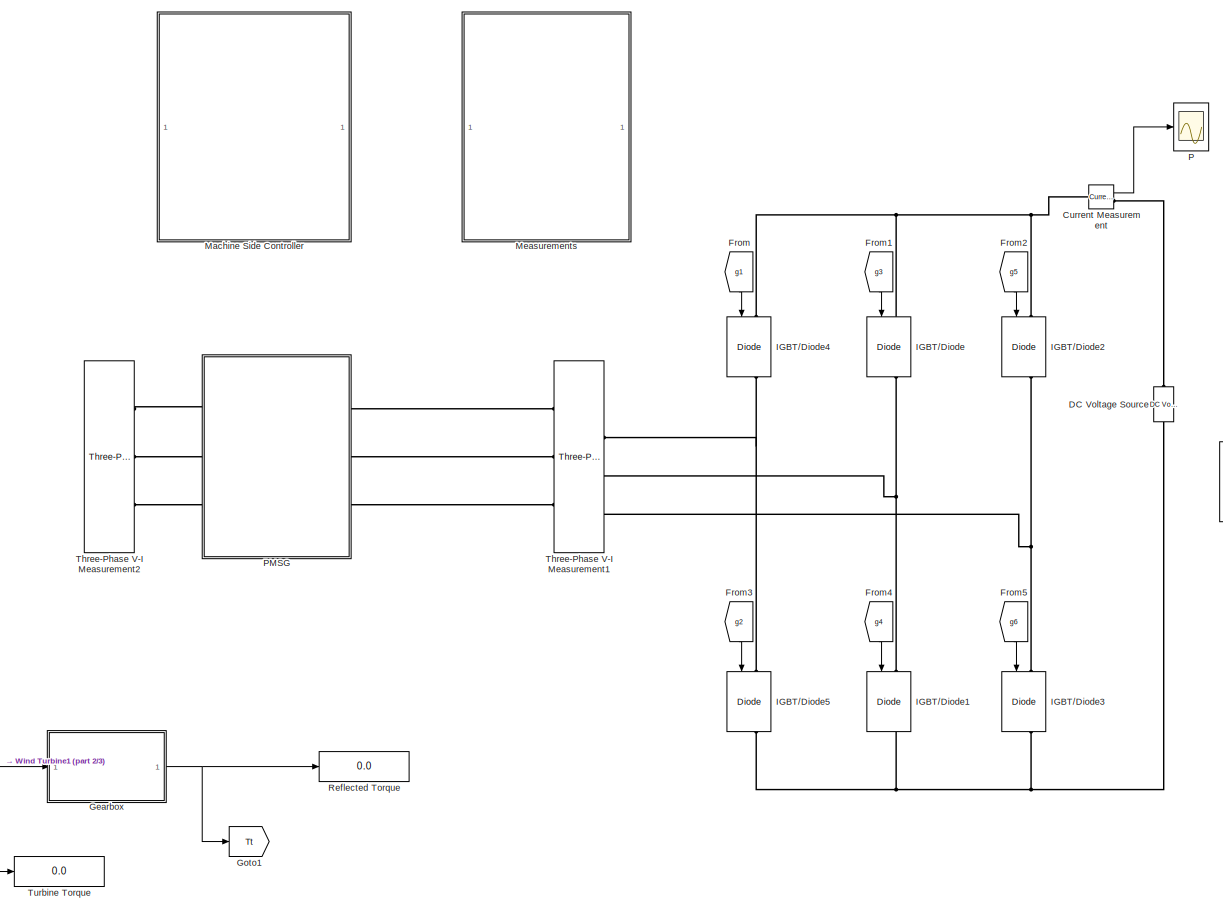
[diagram: root canvas - part 1/3, center side, full height]
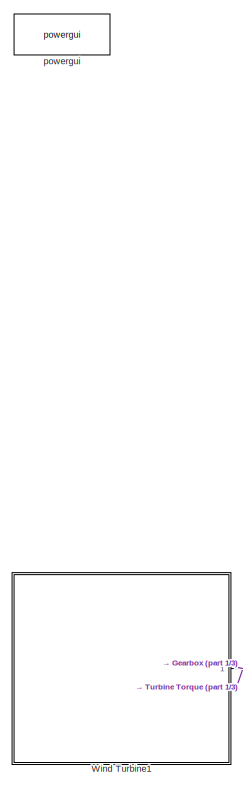
[diagram: root canvas - part 2/3, left side, full height]
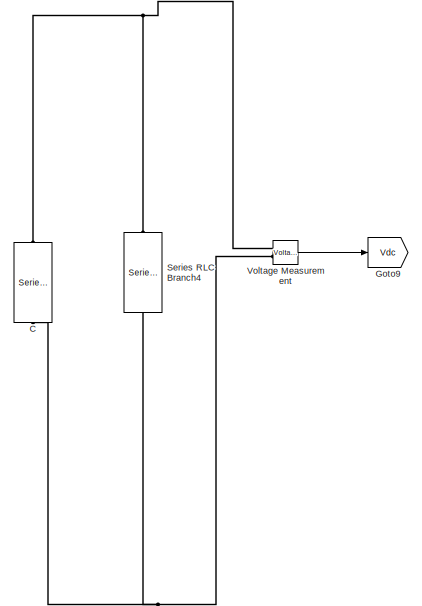
[diagram: root canvas - part 3/3, middle right region]
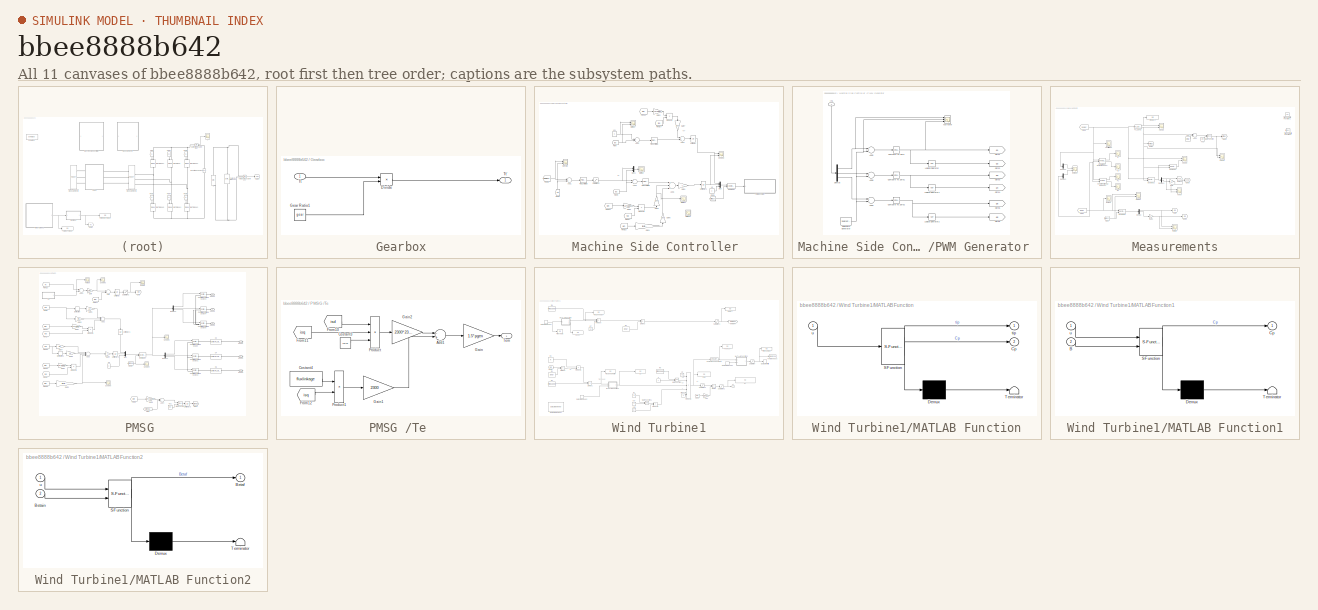
[diagram: thumbnail index - all 11 canvases of the model, root first then tree order]
MODEL slx_bbee8888b642
KIND model
CONFIG AbsTol = auto
CONFIG FixedStep = Ts
CONFIG MaxStep = auto
CONFIG MinStep = auto
CONFIG RelTol = 1e-3
CONFIG SampleTimeConstraint = Unconstrained
CONFIG Solver = FixedStepAuto
CONFIG SolverMode = SingleTasking
CONFIG SolverName = FixedStepAuto
CONFIG StartTime = 0.0
CONFIG StopTime = 10.0
BLOCK [Reference] C  REF=powerlib/Elements/Series RLC Branch
  Ports = [0, 0, 0, 0, 0, 1, 1]
  SourceBlock = powerlib/Elements/Series RLC Branch
  SourceType = Series RLC Branch
BLOCK [Reference] Current Measurement  REF=powerlib/Measurements/Current Measurement
  Ports = [0, 1, 0, 0, 0, 1, 1]
  SourceBlock = powerlib/Measurements/Current Measurement
  SourceType = Current Measurement
  UserDataPersistent = on
BLOCK [Reference] DC Voltage Source  REF=powerlib/Electrical
Sources/DC Voltage Source
  Ports = [0, 0, 0, 0, 0, 1, 1]
  SourceBlock = powerlib/Electrical\nSources/DC Voltage Source
  SourceType = DC Voltage Source
BLOCK [From] From
  GotoTag = g1
  TagVisibility = global
BLOCK [From] From1
  GotoTag = g3
  TagVisibility = global
BLOCK [From] From2
  GotoTag = g5
  TagVisibility = global
BLOCK [From] From3
  GotoTag = g2
  TagVisibility = global
BLOCK [From] From4
  GotoTag = g4
  TagVisibility = global
BLOCK [From] From5
  GotoTag = g6
  TagVisibility = global
BLOCK [SubSystem] Gearbox
  Ports = [1, 1]
  RequestExecContextInheritance = off
  Variant = off
BLOCK [Product] Gearbox/Divide
  InputSameDT = off
  Inputs = */
  OutDataTypeStr = Inherit: Inherit via internal rule
  Ports = [2, 1]
  RndMeth = Floor
  SaturateOnIntegerOverflow = off
BLOCK [Constant] Gearbox/Gear Ratio1
  Value = gear
BLOCK [Inport] Gearbox/Tt
  IconDisplay = Port number
BLOCK [Outport] Gearbox/Tt'
  IconDisplay = Port number
BLOCK [Goto] Goto1
  GotoTag = Tt
  TagVisibility = global
BLOCK [Goto] Goto9
  GotoTag = Vdc
  TagVisibility = global
BLOCK [Reference] IGBT//Diode  REF=powerlib/Power
Electronics/IGBT//Diode
  Ports = [1, 1, 0, 0, 0, 1, 1]
  SourceBlock = powerlib/Power\nElectronics/IGBT//Diode
  SourceType = IGBT/Diode
BLOCK [Reference] IGBT//Diode1  REF=powerlib/Power
Electronics/IGBT//Diode
  Ports = [1, 1, 0, 0, 0, 1, 1]
  SourceBlock = powerlib/Power\nElectronics/IGBT//Diode
  SourceType = IGBT/Diode
BLOCK [Reference] IGBT//Diode2  REF=powerlib/Power
Electronics/IGBT//Diode
  Ports = [1, 1, 0, 0, 0, 1, 1]
  SourceBlock = powerlib/Power\nElectronics/IGBT//Diode
  SourceType = IGBT/Diode
BLOCK [Reference] IGBT//Diode3  REF=powerlib/Power
Electronics/IGBT//Diode
  Ports = [1, 1, 0, 0, 0, 1, 1]
  SourceBlock = powerlib/Power\nElectronics/IGBT//Diode
  SourceType = IGBT/Diode
BLOCK [Reference] IGBT//Diode4  REF=powerlib/Power
Electronics/IGBT//Diode
  Ports = [1, 1, 0, 0, 0, 1, 1]
  SourceBlock = powerlib/Power\nElectronics/IGBT//Diode
  SourceType = IGBT/Diode
BLOCK [Reference] IGBT//Diode5  REF=powerlib/Power
Electronics/IGBT//Diode
  Ports = [1, 1, 0, 0, 0, 1, 1]
  SourceBlock = powerlib/Power\nElectronics/IGBT//Diode
  SourceType = IGBT/Diode
BLOCK [SubSystem] Machine Side Controller 
  Ports = []
  RequestExecContextInheritance = off
  Variant = off
BLOCK [Sum] Machine Side Controller /Add1
  InputSameDT = off
  Inputs = -+
  OutDataTypeStr = Inherit: Inherit via internal rule
  Ports = [2, 1]
  SaturateOnIntegerOverflow = off
BLOCK [Sum] Machine Side Controller /Add2
  InputSameDT = off
  Inputs = +-
  OutDataTypeStr = Inherit: Inherit via internal rule
  Ports = [2, 1]
  SaturateOnIntegerOverflow = off
BLOCK [Sum] Machine Side Controller /Add3
  InputSameDT = off
  Inputs = +-
  OutDataTypeStr = Inherit: Inherit via internal rule
  Ports = [2, 1]
  SaturateOnIntegerOverflow = off
BLOCK [Sum] Machine Side Controller /Add4
  InputSameDT = off
  OutDataTypeStr = Inherit: Inherit via internal rule
  Ports = [2, 1]
  SaturateOnIntegerOverflow = off
BLOCK [Sum] Machine Side Controller /Add5
  InputSameDT = off
  Inputs = +-+
  OutDataTypeStr = Inherit: Inherit via internal rule
  Ports = [3, 1]
  SaturateOnIntegerOverflow = off
BLOCK [From] Machine Side Controller /From
  GotoTag = isd
  TagVisibility = global
BLOCK [From] Machine Side Controller /From1
  GotoTag = wtmsci
  TagVisibility = global
BLOCK [From] Machine Side Controller /From13
  GotoTag = wm
  TagVisibility = global
BLOCK [From] Machine Side Controller /From14
  GotoTag = isq
  TagVisibility = global
BLOCK [From] Machine Side Controller /From16
  GotoTag = wm
  TagVisibility = global
BLOCK [From] Machine Side Controller /From17
  GotoTag = isd
  TagVisibility = global
BLOCK [From] Machine Side Controller /From18
  GotoTag = wm
  TagVisibility = global
BLOCK [From] Machine Side Controller /From2
  GotoTag = wm
  TagVisibility = global
BLOCK [From] Machine Side Controller /From4
  GotoTag = isq
  TagVisibility = global
BLOCK [From] Machine Side Controller /From6
  GotoTag = wmMPPT
  TagVisibility = global
BLOCK [Gain] Machine Side Controller /Gain1
  Gain = -1
  OutDataTypeStr = Inherit: Inherit via internal rule
  ParamDataTypeStr = Inherit: Inherit via internal rule
  SaturateOnIntegerOverflow = off
BLOCK [Gain] Machine Side Controller /Gain2
  Gain = Lq*pgen
  OutDataTypeStr = Inherit: Inherit via internal rule
  ParamDataTypeStr = Inherit: Inherit via internal rule
  SaturateOnIntegerOverflow = off
BLOCK [Gain] Machine Side Controller /Gain3
  Gain = Ld*pgen
  OutDataTypeStr = Inherit: Inherit via internal rule
  ParamDataTypeStr = Inherit: Inherit via internal rule
  SaturateOnIntegerOverflow = off
BLOCK [Gain] Machine Side Controller /Gain4
  Gain = fluxlinkage*pgen
  OutDataTypeStr = Inherit: Inherit via internal rule
  ParamDataTypeStr = Inherit: Inherit via internal rule
  SaturateOnIntegerOverflow = off
BLOCK [Gain] Machine Side Controller /Gain5
  Gain = 1/690
  OutDataTypeStr = Inherit: Inherit via internal rule
  ParamDataTypeStr = Inherit: Inherit via internal rule
  SaturateOnIntegerOverflow = off
BLOCK [Gain] Machine Side Controller /Gain6
  Gain = 1/690
  OutDataTypeStr = Inherit: Inherit via internal rule
  ParamDataTypeStr = Inherit: Inherit via internal rule
  SaturateOnIntegerOverflow = off
BLOCK [Gain] Machine Side Controller /Gain7
  Gain = 1/690
  OutDataTypeStr = Inherit: Inherit via internal rule
  ParamDataTypeStr = Inherit: Inherit via internal rule
  SaturateOnIntegerOverflow = off
BLOCK [Mux] Machine Side Controller /Mux
  DisplayOption = bar
  Inputs = 3
  Ports = [3, 1]
BLOCK [Mux] Machine Side Controller /Mux1
  DisplayOption = bar
  Inputs = 2
  Ports = [2, 1]
BLOCK [Reference] Machine Side Controller /PID Controller1  REF=simulink/Continuous/PID Controller
  Ports = [1, 1]
  SourceBlock = simulink/Continuous/PID Controller
  SourceType = PID 1dof
BLOCK [Reference] Machine Side Controller /PID Controller2  REF=simulink/Continuous/PID Controller
  Ports = [1, 1]
  SourceBlock = simulink/Continuous/PID Controller
  SourceType = PID 1dof
BLOCK [Reference] Machine Side Controller /PID Controller3  REF=simulink/Continuous/PID Controller
  Ports = [1, 1]
  SourceBlock = simulink/Continuous/PID Controller
  SourceType = PID 1dof
BLOCK [SubSystem] Machine Side Controller /PWM Generator 
  Ports = [1]
  RequestExecContextInheritance = off
  Variant = off
BLOCK [Sum] Machine Side Controller /PWM Generator /Add5
  InputSameDT = off
  Inputs = +-
  OutDataTypeStr = Inherit: Inherit via internal rule
  Ports = [2, 1]
  SaturateOnIntegerOverflow = off
BLOCK [Sum] Machine Side Controller /PWM Generator /Add8
  InputSameDT = off
  Inputs = +-
  OutDataTypeStr = Inherit: Inherit via internal rule
  Ports = [2, 1]
  SaturateOnIntegerOverflow = off
BLOCK [Sum] Machine Side Controller /PWM Generator /Add9
  InputSameDT = off
  Inputs = +-
  OutDataTypeStr = Inherit: Inherit via internal rule
  Ports = [2, 1]
  SaturateOnIntegerOverflow = off
BLOCK [Reference] Machine Side Controller /PWM Generator /Compare To Zero  REF=simulink/Logic and Bit
Operations/Compare
To Zero
  Ports = [1, 1]
  SourceBlock = simulink/Logic and Bit\nOperations/Compare\nTo Zero
  SourceType = Compare To Zero
BLOCK [Reference] Machine Side Controller /PWM Generator /Compare To Zero1  REF=simulink/Logic and Bit
Operations/Compare
To Zero
  Ports = [1, 1]
  SourceBlock = simulink/Logic and Bit\nOperations/Compare\nTo Zero
  SourceType = Compare To Zero
BLOCK [Reference] Machine Side Controller /PWM Generator /Compare To Zero2  REF=simulink/Logic and Bit
Operations/Compare
To Zero
  Ports = [1, 1]
  SourceBlock = simulink/Logic and Bit\nOperations/Compare\nTo Zero
  SourceType = Compare To Zero
BLOCK [Demux] Machine Side Controller /PWM Generator /Demux
  DisplayOption = bar
  Outputs = 3
  Ports = [1, 3]
BLOCK [Goto] Machine Side Controller /PWM Generator /Goto1
  GotoTag = g1
  TagVisibility = global
BLOCK [Goto] Machine Side Controller /PWM Generator /Goto2
  GotoTag = g2
  TagVisibility = global
BLOCK [Goto] Machine Side Controller /PWM Generator /Goto3
  GotoTag = g3
  TagVisibility = global
BLOCK [Goto] Machine Side Controller /PWM Generator /Goto4
  GotoTag = g4
  TagVisibility = global
BLOCK [Goto] Machine Side Controller /PWM Generator /Goto5
  GotoTag = g5
  TagVisibility = global
BLOCK [Goto] Machine Side Controller /PWM Generator /Goto6
  GotoTag = g6
  TagVisibility = global
BLOCK [Inport] Machine Side Controller /PWM Generator /In1
  IconDisplay = Port number
BLOCK [Logic] Machine Side Controller /PWM Generator /Logical Operator
  AllPortsSameDT = off
  Operator = NOT
  OutDataTypeStr = boolean
  Ports = [1, 1]
BLOCK [Logic] Machine Side Controller /PWM Generator /Logical Operator1
  AllPortsSameDT = off
  Operator = NOT
  OutDataTypeStr = boolean
  Ports = [1, 1]
BLOCK [Logic] Machine Side Controller /PWM Generator /Logical Operator2
  AllPortsSameDT = off
  Operator = NOT
  OutDataTypeStr = boolean
  Ports = [1, 1]
BLOCK [Reference] Machine Side Controller /PWM Generator /Sawtooth Generator  REF=powerlib_meascontrol/Pulse & Signal
Generators/Sawtooth
Generator
  Ports = [0, 1]
  SourceBlock = powerlib_meascontrol/Pulse & Signal\nGenerators/Sawtooth\nGenerator
  SourceType = Sawtooth Generator
BLOCK [Scope] Machine Side Controller /PWM Generator /vsq-vqref
  NumInputPorts = 3
  Ports = [3]
  ScopeSpecificationString = Simulink.scopes.TimeScopeBlockCfg('CurrentConfiguration', extmgr.ConfigurationSet(extmgr.Configuration('Core','General UI',true),extmgr.Configuration('Core','Source UI',true),extmgr.Configuration('Sources','WiredSimulink',true,'DataLoggingVariableName','ScopeData1','DataLoggingSaveFormat','Array','DataLoggingDecimation','1','DataLoggingDecimateData',true),extmgr.Configuration('Visuals','Time Domai...<+1567ch>
BLOCK [Product] Machine Side Controller /Product1
  InputSameDT = off
  OutDataTypeStr = Inherit: Inherit via internal rule
  Ports = [2, 1]
  RndMeth = Floor
  SaturateOnIntegerOverflow = off
BLOCK [Product] Machine Side Controller /Product3
  InputSameDT = off
  OutDataTypeStr = Inherit: Inherit via internal rule
  Ports = [2, 1]
  RndMeth = Floor
  SaturateOnIntegerOverflow = off
BLOCK [Saturate] Machine Side Controller /Saturation2
  InputPortMap = u0
  LowerLimit = 0
  Ports = [1, 1]
  UpperLimit = 1.5
BLOCK [Scope] Machine Side Controller /Scope2
  NumInputPorts = 2
  Ports = [2]
  ScopeSpecificationString = Simulink.scopes.TimeScopeBlockCfg('CurrentConfiguration', extmgr.ConfigurationSet(extmgr.Configuration('Core','General UI',true),extmgr.Configuration('Core','Source UI',true),extmgr.Configuration('Sources','WiredSimulink',true,'DataLoggingVariableName','ScopeData3','DataLoggingSaveFormat','Array','DataLoggingDecimation','1','DataLoggingDecimateData',true),extmgr.Configuration('Visuals','Time Domai...<+1545ch>
BLOCK [UnitDelay] Machine Side Controller /Unit Delay
  InputProcessing = Elements as channels (sample based)
  SampleTime = Ts
BLOCK [UnitDelay] Machine Side Controller /Unit Delay1
  InputProcessing = Elements as channels (sample based)
  SampleTime = Ts
BLOCK [Constant] Machine Side Controller /Vo
  Value = 0
BLOCK [Constant] Machine Side Controller /Vo1
  Value = 0
BLOCK [Reference] Machine Side Controller /dq0 to abc  REF=powerlib_meascontrol/Transformations/dq0 to abc
  Ports = [2, 1]
  SourceBlock = powerlib_meascontrol/Transformations/dq0 to abc
  SourceType = dq0 to abc Transformation
BLOCK [Scope] Machine Side Controller /id ref isd*
  NumInputPorts = 2
  Ports = [2]
  ScopeSpecificationString = Simulink.scopes.TimeScopeBlockCfg('CurrentConfiguration', extmgr.ConfigurationSet(extmgr.Configuration('Core','General UI',true),extmgr.Configuration('Core','Source UI',true),extmgr.Configuration('Sources','WiredSimulink',true,'DataLoggingVariableName','ScopeData3','DataLoggingSaveFormat','Array','DataLoggingDecimation','1','DataLoggingDecimateData',true),extmgr.Configuration('Visuals','Time Domai...<+1533ch>
BLOCK [Scope] Machine Side Controller /iq ref isq
  Ports = [1]
  ScopeSpecificationString = Simulink.scopes.TimeScopeBlockCfg('CurrentConfiguration', extmgr.ConfigurationSet(extmgr.Configuration('Core','General UI',true),extmgr.Configuration('Core','Source UI',true),extmgr.Configuration('Sources','WiredSimulink',true,'DataLoggingVariableName','ScopeData7','DataLoggingSaveFormat','Array','DataLoggingDecimation','1','DataLoggingDecimateData',true),extmgr.Configuration('Visuals','Time Domai...<+1541ch>
BLOCK [Scope] Machine Side Controller /iq ref isq1
  Ports = [1]
  ScopeSpecificationString = Simulink.scopes.TimeScopeBlockCfg('CurrentConfiguration', extmgr.ConfigurationSet(extmgr.Configuration('Core','General UI',true),extmgr.Configuration('Core','Source UI',true),extmgr.Configuration('Sources','WiredSimulink',true,'DataLoggingVariableName','ScopeData1','DataLoggingSaveFormat','Array','DataLoggingDecimation','1','DataLoggingDecimateData',true),extmgr.Configuration('Visuals','Time Domai...<+1527ch>
BLOCK [Scope] Machine Side Controller /iq ref isq2
  Ports = [1]
  ScopeSpecificationString = Simulink.scopes.TimeScopeBlockCfg('CurrentConfiguration', extmgr.ConfigurationSet(extmgr.Configuration('Core','General UI',true),extmgr.Configuration('Core','Source UI',true),extmgr.Configuration('Sources','WiredSimulink',true,'DataLoggingVariableName','ScopeData2','DataLoggingSaveFormat','Array','DataLoggingDecimation','1','DataLoggingDecimateData',true),extmgr.Configuration('Visuals','Time Domai...<+1529ch>
BLOCK [Scope] Machine Side Controller /wm*-wm
  NumInputPorts = 2
  Ports = [2]
  ScopeSpecificationString = Simulink.scopes.TimeScopeBlockCfg('CurrentConfiguration', extmgr.ConfigurationSet(extmgr.Configuration('Core','General UI',true),extmgr.Configuration('Core','Source UI',true),extmgr.Configuration('Sources','WiredSimulink',true,'DataLoggingVariableName','ScopeData5','DataLoggingSaveFormat','Array','DataLoggingDecimation','1','DataLoggingDecimateData',true),extmgr.Configuration('Visuals','Time Domai...<+1536ch>
BLOCK [SubSystem] Measurements
  Ports = []
  RequestExecContextInheritance = off
  Variant = off
BLOCK [Sum] Measurements/Add3
  InputSameDT = off
  Inputs = +-
  OutDataTypeStr = Inherit: Inherit via internal rule
  Ports = [2, 1]
  SaturateOnIntegerOverflow = off
BLOCK [Demux] Measurements/Demux
  DisplayOption = bar
  Outputs = 3
  Ports = [1, 3]
BLOCK [Demux] Measurements/Demux1
  DisplayOption = bar
  Outputs = 3
  Ports = [1, 3]
BLOCK [Demux] Measurements/Demux2
  DisplayOption = bar
  Outputs = 3
  Ports = [1, 3]
BLOCK [Demux] Measurements/Demux3
  DisplayOption = bar
  Outputs = 3
  Ports = [1, 3]
BLOCK [Display] Measurements/Display2
  Decimation = 1
  Ports = [1]
BLOCK [From] Measurements/From
  GotoTag = wtmsci
  TagVisibility = global
BLOCK [From] Measurements/From1
  GotoTag = Isabc
  TagVisibility = global
BLOCK [From] Measurements/From4
  GotoTag = Vsabc
  TagVisibility = global
BLOCK [Gain] Measurements/Gain
  OutDataTypeStr = Inherit: Inherit via internal rule
  ParamDataTypeStr = Inherit: Inherit via internal rule
  SaturateOnIntegerOverflow = off
BLOCK [Gain] Measurements/Gain1
  OutDataTypeStr = Inherit: Inherit via internal rule
  ParamDataTypeStr = Inherit: Inherit via internal rule
  SaturateOnIntegerOverflow = off
BLOCK [Goto] Measurements/Goto
  GotoTag = isd
  TagVisibility = global
BLOCK [Goto] Measurements/Goto1
  GotoTag = wtmsc
  TagVisibility = global
BLOCK [Goto] Measurements/Goto10
  GotoTag = vsd
  TagVisibility = global
BLOCK [Goto] Measurements/Goto2
  GotoTag = wtmsci
  TagVisibility = global
BLOCK [Goto] Measurements/Goto3
  GotoTag = isq
  TagVisibility = global
BLOCK [Goto] Measurements/Goto9
  GotoTag = vsq
  TagVisibility = global
BLOCK [Math] Measurements/Math Function
  Operator = mod
  Ports = [2, 1]
BLOCK [Scope] Measurements/P
  Ports = [1]
  ScopeSpecificationString = Simulink.scopes.TimeScopeBlockCfg('CurrentConfiguration', extmgr.ConfigurationSet(extmgr.Configuration('Core','General UI',true),extmgr.Configuration('Core','Source UI',true),extmgr.Configuration('Sources','WiredSimulink',true,'DataLoggingVariableName','ScopeData1'),extmgr.Configuration('Visuals','Time Domain',true,'SerializedDisplays',{struct('MinYLimReal','-0.33187','MaxYLimReal','0.12226','YLab...<+1458ch>
BLOCK [Scope] Measurements/P1
  Ports = [1]
  ScopeSpecificationString = Simulink.scopes.TimeScopeBlockCfg('CurrentConfiguration', extmgr.ConfigurationSet(extmgr.Configuration('Core','General UI',true),extmgr.Configuration('Core','Source UI',true),extmgr.Configuration('Sources','WiredSimulink',true,'DataLoggingVariableName','ScopeData3'),extmgr.Configuration('Visuals','Time Domain',true,'SerializedDisplays',{struct('MinYLimReal','-0.09768','MaxYLimReal','-0.0887','YLab...<+1457ch>
BLOCK [Reference] Measurements/PLL (3ph)1  REF=powerlib_meascontrol/PLL/PLL
(3ph)
  Ports = [1, 2]
  SourceBlock = powerlib_meascontrol/PLL/PLL\n(3ph)
  SourceType = PLL (3ph)
BLOCK [Reference] Measurements/Power (3ph, Instantaneous)  REF=powerlib_meascontrol/Measurements/Power
(3ph, Instantaneous)
  Ports = [2, 2]
  SourceBlock = powerlib_meascontrol/Measurements/Power\n(3ph, Instantaneous)
  SourceType = Power (3ph, Instantaneous)
BLOCK [Reference] Measurements/Power (Positive-Sequence)  REF=powerlib_meascontrol/Measurements/Power
(Positive-Sequence)
  Ports = [2, 2]
  SourceBlock = powerlib_meascontrol/Measurements/Power\n(Positive-Sequence)
  SourceType = Power (Positive-Sequence)
BLOCK [Scope] Measurements/Q
  Ports = [1]
  ScopeSpecificationString = Simulink.scopes.TimeScopeBlockCfg('CurrentConfiguration', extmgr.ConfigurationSet(extmgr.Configuration('Core','General UI',true),extmgr.Configuration('Core','Source UI',true),extmgr.Configuration('Sources','WiredSimulink',true,'DataLoggingVariableName','ScopeData2'),extmgr.Configuration('Visuals','Time Domain',true,'SerializedDisplays',{struct('MinYLimReal','-0.0842','MaxYLimReal','0.41875','YLabe...<+1456ch>
BLOCK [Scope] Measurements/Q1
  Ports = [1]
  ScopeSpecificationString = Simulink.scopes.TimeScopeBlockCfg('CurrentConfiguration', extmgr.ConfigurationSet(extmgr.Configuration('Core','General UI',true),extmgr.Configuration('Core','Source UI',true),extmgr.Configuration('Sources','WiredSimulink',true,'DataLoggingVariableName','ScopeData4'),extmgr.Configuration('Visuals','Time Domain',true,'SerializedDisplays',{struct('MinYLimReal','1.34299','MaxYLimReal','1.42409','YLabe...<+1455ch>
BLOCK [Trigonometry] Measurements/Trigonometric Function1
  Operator = cos
  Ports = [1, 1]
BLOCK [Trigonometry] Measurements/Trigonometric Function2
  Ports = [1, 1]
BLOCK [Constant] Measurements/Vo1
  Value = 2*pi
BLOCK [Constant] Measurements/Vo2
  Value = -2*(pi/6)
BLOCK [Reference] Measurements/abc to dq0  REF=powerlib_meascontrol/Transformations/abc to dq0
  Ports = [2, 1]
  SourceBlock = powerlib_meascontrol/Transformations/abc to dq0
  SourceType = abc to dq0 Transformation
BLOCK [Reference] Measurements/abc to dq1  REF=powerlib_meascontrol/Transformations/abc to dq0
  Ports = [2, 1]
  SourceBlock = powerlib_meascontrol/Transformations/abc to dq0
  SourceType = abc to dq0 Transformation
BLOCK [Reference] Measurements/dq0 to abc  REF=powerlib_meascontrol/Transformations/dq0 to abc
  Ports = [2, 1]
  SourceBlock = powerlib_meascontrol/Transformations/dq0 to abc
  SourceType = dq0 to abc Transformation
BLOCK [Scope] Measurements/isd-isq
  NumInputPorts = 2
  Ports = [2]
  ScopeSpecificationString = Simulink.scopes.TimeScopeBlockCfg('CurrentConfiguration', extmgr.ConfigurationSet(extmgr.Configuration('Core','General UI',true),extmgr.Configuration('Core','Source UI',true),extmgr.Configuration('Sources','WiredSimulink',true,'DataLoggingVariableName','ScopeData4'),extmgr.Configuration('Visuals','Time Domain',true,'SerializedDisplays',{struct('MinYLimReal','-12.98913','MaxYLimReal','17.89505','YL...<+1451ch>
BLOCK [Scope] Measurements/isd-isq1
  Ports = [1]
  ScopeSpecificationString = Simulink.scopes.TimeScopeBlockCfg('CurrentConfiguration', extmgr.ConfigurationSet(extmgr.Configuration('Core','General UI',true),extmgr.Configuration('Core','Source UI',true),extmgr.Configuration('Sources','WiredSimulink',true,'DataLoggingVariableName','ScopeData5'),extmgr.Configuration('Visuals','Time Domain',true,'SerializedDisplays',{struct('MinYLimReal','-2.55068','MaxYLimReal','2.46827','YLab...<+1466ch>
BLOCK [Scope] Measurements/isd-isq2
  NumInputPorts = 2
  Ports = [2]
  ScopeSpecificationString = Simulink.scopes.TimeScopeBlockCfg('CurrentConfiguration', extmgr.ConfigurationSet(extmgr.Configuration('Core','General UI',true),extmgr.Configuration('Core','Source UI',true),extmgr.Configuration('Sources','WiredSimulink',true,'DataLoggingVariableName','ScopeData3'),extmgr.Configuration('Visuals','Time Domain',true,'SerializedDisplays',{struct('MinYLimReal','-0.41169','MaxYLimReal','0.30889','YLab...<+1482ch>
BLOCK [Scope] Measurements/isd-isq3
  NumInputPorts = 2
  Ports = [2]
  ScopeSpecificationString = Simulink.scopes.TimeScopeBlockCfg('CurrentConfiguration', extmgr.ConfigurationSet(extmgr.Configuration('Core','General UI',true),extmgr.Configuration('Core','Source UI',true),extmgr.Configuration('Sources','WiredSimulink',true,'DataLoggingVariableName','ScopeData2'),extmgr.Configuration('Visuals','Time Domain',true,'SerializedDisplays',{struct('MinYLimReal','-2.53266','MaxYLimReal','2.50625','YLab...<+1449ch>
BLOCK [Scope] Measurements/vd-vq 
  NumInputPorts = 2
  Ports = [2]
  ScopeSpecificationString = Simulink.scopes.TimeScopeBlockCfg('CurrentConfiguration', extmgr.ConfigurationSet(extmgr.Configuration('Core','General UI',true),extmgr.Configuration('Core','Source UI',true),extmgr.Configuration('Sources','WiredSimulink',true,'DataLoggingVariableName','ScopeData12'),extmgr.Configuration('Visuals','Time Domain',true,'SerializedDisplays',{struct('MinYLimReal','-2.3364','MaxYLimReal','1.44358','YLab...<+1442ch>
BLOCK [Scope] Measurements/vd-vq 1
  NumInputPorts = 2
  Ports = [2]
  ScopeSpecificationString = Simulink.scopes.TimeScopeBlockCfg('CurrentConfiguration', extmgr.ConfigurationSet(extmgr.Configuration('Core','General UI',true),extmgr.Configuration('Core','Source UI',true),extmgr.Configuration('Sources','WiredSimulink',true,'DataLoggingVariableName','ScopeData1'),extmgr.Configuration('Visuals','Time Domain',true,'SerializedDisplays',{struct('MinYLimReal','-7.2296','MaxYLimReal','65.06637','YLab...<+1820ch>
BLOCK [Scope] Measurements/vd-vq 2
  NumInputPorts = 2
  Ports = [2]
  ScopeSpecificationString = Simulink.scopes.TimeScopeBlockCfg('CurrentConfiguration', extmgr.ConfigurationSet(extmgr.Configuration('Core','General UI',true),extmgr.Configuration('Core','Source UI',true),extmgr.Configuration('Sources','WiredSimulink',true,'DataLoggingVariableName','ScopeData2'),extmgr.Configuration('Visuals','Time Domain',true,'SerializedDisplays',{struct('MinYLimReal','-0.27006','MaxYLimReal','6.49602','YLab...<+1458ch>
BLOCK [Scope] Measurements/vd-vq 3
  NumInputPorts = 2
  Ports = [2]
  ScopeSpecificationString = Simulink.scopes.TimeScopeBlockCfg('CurrentConfiguration', extmgr.ConfigurationSet(extmgr.Configuration('Core','General UI',true),extmgr.Configuration('Core','Source UI',true),extmgr.Configuration('Sources','WiredSimulink',true,'DataLoggingVariableName','ScopeData2'),extmgr.Configuration('Visuals','Time Domain',true,'SerializedDisplays',{struct('MinYLimReal','-0.94704','MaxYLimReal','1.21253','YLab...<+1511ch>
BLOCK [Scope] Measurements/vpn-filtered1
  Ports = [1]
  ScopeSpecificationString = Simulink.scopes.TimeScopeBlockCfg('CurrentConfiguration', extmgr.ConfigurationSet(extmgr.Configuration('Core','General UI',true),extmgr.Configuration('Core','Source UI',true),extmgr.Configuration('Sources','WiredSimulink',true,'DataLoggingVariableName','ScopeData7'),extmgr.Configuration('Visuals','Time Domain',true,'SerializedDisplays',{struct('MinYLimReal','-1.02377','MaxYLimReal','1.03609','YLab...<+1825ch>
BLOCK [Scope] P
  Ports = [1]
  ScopeSpecificationString = Simulink.scopes.TimeScopeBlockCfg('CurrentConfiguration', extmgr.ConfigurationSet(extmgr.Configuration('Core','General UI',true),extmgr.Configuration('Core','Source UI',true),extmgr.Configuration('Sources','WiredSimulink',true,'DataLoggingVariableName','ScopeData1'),extmgr.Configuration('Visuals','Time Domain',true,'SerializedDisplays',{struct('MinYLimReal','-17320.91199','MaxYLimReal','719.9046',...<+1473ch>
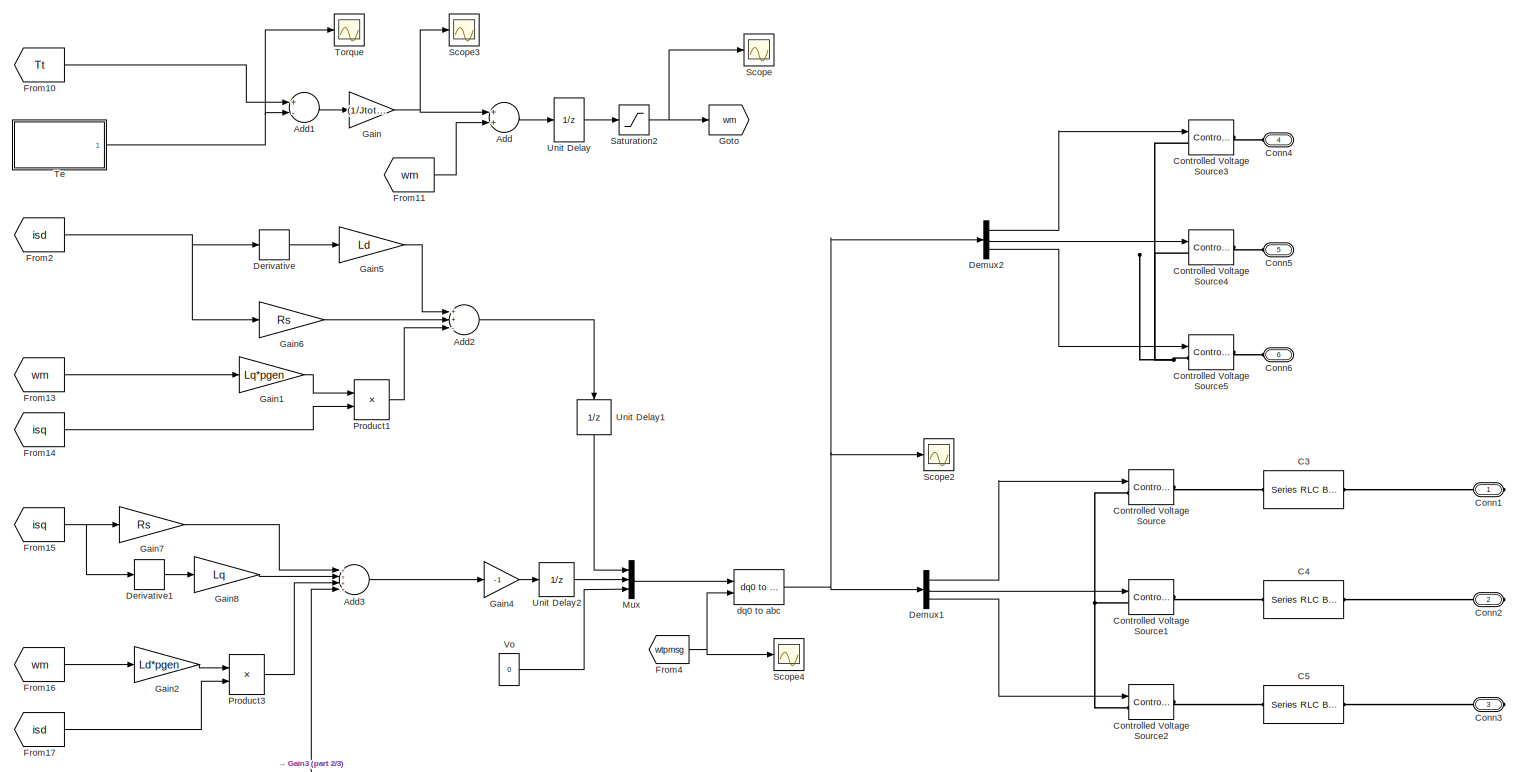
[diagram: PMSG  - part 1/3, most of the canvas]
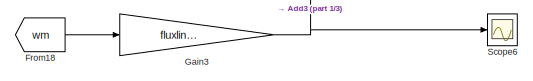
[diagram: PMSG  - part 2/3, bottom left region]
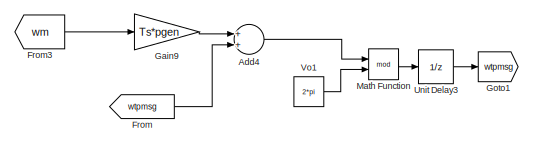
[diagram: PMSG  - part 3/3, bottom center region]
BLOCK [SubSystem] PMSG 
  Ports = [0, 0, 0, 0, 0, 3, 3]
  RequestExecContextInheritance = off
  Variant = off
BLOCK [Sum] PMSG /Add
  InputSameDT = off
  OutDataTypeStr = Inherit: Inherit via internal rule
  Ports = [2, 1]
  SaturateOnIntegerOverflow = off
BLOCK [Sum] PMSG /Add1
  InputSameDT = off
  Inputs = +-
  OutDataTypeStr = Inherit: Inherit via internal rule
  Ports = [2, 1]
  SaturateOnIntegerOverflow = off
BLOCK [Sum] PMSG /Add2
  InputSameDT = off
  Inputs = ++-
  OutDataTypeStr = Inherit: Inherit via internal rule
  Ports = [3, 1]
  SaturateOnIntegerOverflow = off
BLOCK [Sum] PMSG /Add3
  InputSameDT = off
  Inputs = ++++
  OutDataTypeStr = Inherit: Inherit via internal rule
  Ports = [4, 1]
  SaturateOnIntegerOverflow = off
BLOCK [Sum] PMSG /Add4
  InputSameDT = off
  OutDataTypeStr = Inherit: Inherit via internal rule
  Ports = [2, 1]
  SaturateOnIntegerOverflow = off
BLOCK [Reference] PMSG /C3  REF=powerlib/Elements/Series RLC Branch
  Ports = [0, 0, 0, 0, 0, 1, 1]
  SourceBlock = powerlib/Elements/Series RLC Branch
  SourceType = Series RLC Branch
BLOCK [Reference] PMSG /C4  REF=powerlib/Elements/Series RLC Branch
  Ports = [0, 0, 0, 0, 0, 1, 1]
  SourceBlock = powerlib/Elements/Series RLC Branch
  SourceType = Series RLC Branch
BLOCK [Reference] PMSG /C5  REF=powerlib/Elements/Series RLC Branch
  Ports = [0, 0, 0, 0, 0, 1, 1]
  SourceBlock = powerlib/Elements/Series RLC Branch
  SourceType = Series RLC Branch
BLOCK [PMIOPort] PMSG /Conn1
  Port = 1
  Side = Right
BLOCK [PMIOPort] PMSG /Conn2
  Port = 2
  Side = Right
BLOCK [PMIOPort] PMSG /Conn3
  Port = 3
  Side = Right
BLOCK [PMIOPort] PMSG /Conn4
  Port = 4
  Side = Left
BLOCK [PMIOPort] PMSG /Conn5
  Port = 5
  Side = Left
BLOCK [PMIOPort] PMSG /Conn6
  Port = 6
  Side = Left
BLOCK [Reference] PMSG /Controlled Voltage Source  REF=powerlib/Electrical
Sources/Controlled Voltage Source
  Ports = [1, 0, 0, 0, 0, 1, 1]
  SourceBlock = powerlib/Electrical\nSources/Controlled Voltage Source
  SourceType = Controlled Voltage Source
BLOCK [Reference] PMSG /Controlled Voltage Source1  REF=powerlib/Electrical
Sources/Controlled Voltage Source
  Ports = [1, 0, 0, 0, 0, 1, 1]
  SourceBlock = powerlib/Electrical\nSources/Controlled Voltage Source
  SourceType = Controlled Voltage Source
BLOCK [Reference] PMSG /Controlled Voltage Source2  REF=powerlib/Electrical
Sources/Controlled Voltage Source
  Ports = [1, 0, 0, 0, 0, 1, 1]
  SourceBlock = powerlib/Electrical\nSources/Controlled Voltage Source
  SourceType = Controlled Voltage Source
BLOCK [Reference] PMSG /Controlled Voltage Source3  REF=powerlib/Electrical
Sources/Controlled Voltage Source
  Ports = [1, 0, 0, 0, 0, 1, 1]
  SourceBlock = powerlib/Electrical\nSources/Controlled Voltage Source
  SourceType = Controlled Voltage Source
BLOCK [Reference] PMSG /Controlled Voltage Source4  REF=powerlib/Electrical
Sources/Controlled Voltage Source
  Ports = [1, 0, 0, 0, 0, 1, 1]
  SourceBlock = powerlib/Electrical\nSources/Controlled Voltage Source
  SourceType = Controlled Voltage Source
BLOCK [Reference] PMSG /Controlled Voltage Source5  REF=powerlib/Electrical
Sources/Controlled Voltage Source
  Ports = [1, 0, 0, 0, 0, 1, 1]
  SourceBlock = powerlib/Electrical\nSources/Controlled Voltage Source
  SourceType = Controlled Voltage Source
BLOCK [Demux] PMSG /Demux1
  DisplayOption = bar
  Outputs = 3
  Ports = [1, 3]
BLOCK [Demux] PMSG /Demux2
  DisplayOption = bar
  Outputs = 3
  Ports = [1, 3]
BLOCK [Derivative] PMSG /Derivative
BLOCK [Derivative] PMSG /Derivative1
BLOCK [From] PMSG /From
  GotoTag = wtpmsg
  TagVisibility = global
BLOCK [From] PMSG /From10
  GotoTag = Tt
  TagVisibility = global
BLOCK [From] PMSG /From11
  GotoTag = wm
  TagVisibility = global
BLOCK [From] PMSG /From13
  GotoTag = wm
  TagVisibility = global
BLOCK [From] PMSG /From14
  GotoTag = isq
  TagVisibility = global
BLOCK [From] PMSG /From15
  GotoTag = isq
  TagVisibility = global
BLOCK [From] PMSG /From16
  GotoTag = wm
  TagVisibility = global
BLOCK [From] PMSG /From17
  GotoTag = isd
  TagVisibility = global
BLOCK [From] PMSG /From18
  GotoTag = wm
  TagVisibility = global
BLOCK [From] PMSG /From2
  GotoTag = isd
  TagVisibility = global
BLOCK [From] PMSG /From3
  GotoTag = wm
  TagVisibility = global
BLOCK [From] PMSG /From4
  GotoTag = wtpmsg
  TagVisibility = global
BLOCK [Gain] PMSG /Gain
  Gain = (1/Jtotal)*Ts
  OutDataTypeStr = Inherit: Inherit via internal rule
  ParamDataTypeStr = Inherit: Inherit via internal rule
  SaturateOnIntegerOverflow = off
BLOCK [Gain] PMSG /Gain1
  Gain = Lq*pgen
  OutDataTypeStr = Inherit: Inherit via internal rule
  ParamDataTypeStr = Inherit: Inherit via internal rule
  SaturateOnIntegerOverflow = off
BLOCK [Gain] PMSG /Gain2
  Gain = Ld*pgen
  OutDataTypeStr = Inherit: Inherit via internal rule
  ParamDataTypeStr = Inherit: Inherit via internal rule
  SaturateOnIntegerOverflow = off
BLOCK [Gain] PMSG /Gain3
  Gain = fluxlinkage*pgen
  OutDataTypeStr = Inherit: Inherit via internal rule
  ParamDataTypeStr = Inherit: Inherit via internal rule
  SaturateOnIntegerOverflow = off
BLOCK [Gain] PMSG /Gain4
  Gain = -1
  OutDataTypeStr = Inherit: Inherit via internal rule
  ParamDataTypeStr = Inherit: Inherit via internal rule
  SaturateOnIntegerOverflow = off
BLOCK [Gain] PMSG /Gain5
  Gain = Ld
  OutDataTypeStr = Inherit: Inherit via internal rule
  ParamDataTypeStr = Inherit: Inherit via internal rule
  SaturateOnIntegerOverflow = off
BLOCK [Gain] PMSG /Gain6
  Gain = Rs
  OutDataTypeStr = Inherit: Inherit via internal rule
  ParamDataTypeStr = Inherit: Inherit via internal rule
  SaturateOnIntegerOverflow = off
BLOCK [Gain] PMSG /Gain7
  Gain = Rs
  OutDataTypeStr = Inherit: Inherit via internal rule
  ParamDataTypeStr = Inherit: Inherit via internal rule
  SaturateOnIntegerOverflow = off
BLOCK [Gain] PMSG /Gain8
  Gain = Lq
  OutDataTypeStr = Inherit: Inherit via internal rule
  ParamDataTypeStr = Inherit: Inherit via internal rule
  SaturateOnIntegerOverflow = off
BLOCK [Gain] PMSG /Gain9
  Gain = Ts*pgen
  OutDataTypeStr = Inherit: Inherit via internal rule
  ParamDataTypeStr = Inherit: Inherit via internal rule
  SaturateOnIntegerOverflow = off
BLOCK [Goto] PMSG /Goto
  GotoTag = wm
  TagVisibility = global
BLOCK [Goto] PMSG /Goto1
  GotoTag = wtpmsg
  TagVisibility = global
BLOCK [Math] PMSG /Math Function
  Operator = mod
  Ports = [2, 1]
BLOCK [Mux] PMSG /Mux
  DisplayOption = bar
  Inputs = 3
  Ports = [3, 1]
BLOCK [Product] PMSG /Product1
  InputSameDT = off
  OutDataTypeStr = Inherit: Inherit via internal rule
  Ports = [2, 1]
  RndMeth = Floor
  SaturateOnIntegerOverflow = off
BLOCK [Product] PMSG /Product3
  InputSameDT = off
  OutDataTypeStr = Inherit: Inherit via internal rule
  Ports = [2, 1]
  RndMeth = Floor
  SaturateOnIntegerOverflow = off
BLOCK [Saturate] PMSG /Saturation2
  InputPortMap = u0
  LowerLimit = 150
  Ports = [1, 1]
  UpperLimit = 2*pi*(1735/60)
BLOCK [Scope] PMSG /Scope
  Ports = [1]
  ScopeSpecificationString = Simulink.scopes.TimeScopeBlockCfg('CurrentConfiguration', extmgr.ConfigurationSet(extmgr.Configuration('Core','General UI',true),extmgr.Configuration('Core','Source UI',true),extmgr.Configuration('Sources','WiredSimulink',true,'DataLoggingVariableName','ScopeData1'),extmgr.Configuration('Visuals','Time Domain',true,'SerializedDisplays',{struct('MinYLimReal','179.38363','MaxYLimReal','180.5922','YL...<+1424ch>
BLOCK [Scope] PMSG /Scope2
  Ports = [1]
  ScopeSpecificationString = Simulink.scopes.TimeScopeBlockCfg('CurrentConfiguration', extmgr.ConfigurationSet(extmgr.Configuration('Core','General UI',true),extmgr.Configuration('Core','Source UI',true),extmgr.Configuration('Sources','WiredSimulink',true,'DataLoggingVariableName','ScopeData3'),extmgr.Configuration('Visuals','Time Domain',true,'SerializedDisplays',{struct('MinYLimReal','-912.50827','MaxYLimReal','817.53872','...<+1847ch>
BLOCK [Scope] PMSG /Scope3
  Ports = [1]
  ScopeSpecificationString = Simulink.scopes.TimeScopeBlockCfg('CurrentConfiguration', extmgr.ConfigurationSet(extmgr.Configuration('Core','General UI',true),extmgr.Configuration('Core','Source UI',true),extmgr.Configuration('Sources','WiredSimulink',true,'DataLoggingVariableName','ScopeData4'),extmgr.Configuration('Visuals','Time Domain',true,'SerializedDisplays',{struct('MinYLimReal','119.99398','MaxYLimReal','120.00215','Y...<+1428ch>
BLOCK [Scope] PMSG /Scope4
  Ports = [1]
  ScopeSpecificationString = Simulink.scopes.TimeScopeBlockCfg('CurrentConfiguration', extmgr.ConfigurationSet(extmgr.Configuration('Core','General UI',true),extmgr.Configuration('Core','Source UI',true),extmgr.Configuration('Sources','WiredSimulink',true,'DataLoggingVariableName','ScopeData1'),extmgr.Configuration('Visuals','Time Domain',true,'SerializedDisplays',{struct('MinYLimReal','-0.78539','MaxYLimReal','7.06854','YLab...<+1414ch>
BLOCK [Scope] PMSG /Scope6
  Ports = [1]
  ScopeSpecificationString = Simulink.scopes.TimeScopeBlockCfg('CurrentConfiguration', extmgr.ConfigurationSet(extmgr.Configuration('Core','General UI',true),extmgr.Configuration('Core','Source UI',true),extmgr.Configuration('Sources','WiredSimulink',true,'DataLoggingVariableName','ScopeData3'),extmgr.Configuration('Visuals','Time Domain',true,'SerializedDisplays',{struct('MinYLimReal','576.86175','MaxYLimReal','808.24425','Y...<+1422ch>
BLOCK [SubSystem] PMSG /Te 
  Ports = [0, 1]
  RequestExecContextInheritance = off
  Variant = off
BLOCK [Sum] PMSG /Te /Add1
  InputSameDT = off
  Inputs = -+
  OutDataTypeStr = Inherit: Inherit via internal rule
  Ports = [2, 1]
  SaturateOnIntegerOverflow = off
BLOCK [Constant] PMSG /Te /Costant3
  Value = Ld-Lq
BLOCK [Constant] PMSG /Te /Costant4
  Value = fluxlinkage
BLOCK [From] PMSG /Te /From10
  GotoTag = isd
  TagVisibility = global
BLOCK [From] PMSG /Te /From11
  GotoTag = isq
  TagVisibility = global
BLOCK [From] PMSG /Te /From12
  GotoTag = isq
  TagVisibility = global
BLOCK [Gain] PMSG /Te /Gain
  Gain = 1.5*pgen
  OutDataTypeStr = Inherit: Inherit via internal rule
  ParamDataTypeStr = Inherit: Inherit via internal rule
  SaturateOnIntegerOverflow = off
BLOCK [Gain] PMSG /Te /Gain1
  Gain = 2300
  OutDataTypeStr = Inherit: Inherit via internal rule
  ParamDataTypeStr = Inherit: Inherit via internal rule
  SaturateOnIntegerOverflow = off
BLOCK [Gain] PMSG /Te /Gain2
  Gain = 2300*2300
  OutDataTypeStr = Inherit: Inherit via internal rule
  ParamDataTypeStr = Inherit: Inherit via internal rule
  SaturateOnIntegerOverflow = off
BLOCK [Product] PMSG /Te /Product
  InputSameDT = off
  Inputs = 3
  OutDataTypeStr = Inherit: Inherit via internal rule
  Ports = [3, 1]
  RndMeth = Floor
  SaturateOnIntegerOverflow = off
BLOCK [Product] PMSG /Te /Product1
  InputSameDT = off
  OutDataTypeStr = Inherit: Inherit via internal rule
  Ports = [2, 1]
  RndMeth = Floor
  SaturateOnIntegerOverflow = off
BLOCK [Outport] PMSG /Te /Tem
  IconDisplay = Port number
BLOCK [Scope] PMSG /Torque
  Ports = [1]
  ScopeSpecificationString = Simulink.scopes.TimeScopeBlockCfg('CurrentConfiguration', extmgr.ConfigurationSet(extmgr.Configuration('Core','General UI',true),extmgr.Configuration('Core','Source UI',true),extmgr.Configuration('Sources','WiredSimulink',true,'DataLoggingVariableName','ScopeData2'),extmgr.Configuration('Visuals','Time Domain',true,'SerializedDisplays',{struct('MinYLimReal','12778.99138','MaxYLimReal','18628.27443...<+1436ch>
BLOCK [UnitDelay] PMSG /Unit Delay
  InputProcessing = Elements as channels (sample based)
  SampleTime = Ts
BLOCK [UnitDelay] PMSG /Unit Delay1
  InputProcessing = Elements as channels (sample based)
  SampleTime = -1
BLOCK [UnitDelay] PMSG /Unit Delay2
  InputProcessing = Elements as channels (sample based)
  SampleTime = -1
BLOCK [UnitDelay] PMSG /Unit Delay3
  InputProcessing = Elements as channels (sample based)
  SampleTime = -1
BLOCK [Constant] PMSG /Vo
  Value = 0
BLOCK [Constant] PMSG /Vo1
  Value = 2*pi
BLOCK [Reference] PMSG /dq0 to abc  REF=powerlib_meascontrol/Transformations/dq0 to abc
  Ports = [2, 1]
  SourceBlock = powerlib_meascontrol/Transformations/dq0 to abc
  SourceType = dq0 to abc Transformation
BLOCK [Display] Reflected Torque
  Decimation = 1
  Ports = [1]
BLOCK [Reference] Series RLC Branch4  REF=powerlib/Elements/Series RLC Branch
  Ports = [0, 0, 0, 0, 0, 1, 1]
  SourceBlock = powerlib/Elements/Series RLC Branch
  SourceType = Series RLC Branch
BLOCK [Reference] Three-Phase V-I Measurement1  REF=powerlib/Measurements/Three-Phase
V-I Measurement
  Ports = [0, 1, 0, 0, 0, 3, 3]
  SourceBlock = powerlib/Measurements/Three-Phase\nV-I Measurement
  SourceType = Three-Phase VI Measurement
BLOCK [Reference] Three-Phase V-I Measurement2  REF=powerlib/Measurements/Three-Phase
V-I Measurement
  Ports = [0, 0, 0, 0, 0, 3, 3]
  SourceBlock = powerlib/Measurements/Three-Phase\nV-I Measurement
  SourceType = Three-Phase VI Measurement
BLOCK [Display] Turbine Torque
  Decimation = 1
  Ports = [1]
BLOCK [Reference] Voltage Measurement  REF=powerlib/Measurements/Voltage Measurement
  Ports = [0, 1, 0, 0, 0, 2]
  SourceBlock = powerlib/Measurements/Voltage Measurement
  SourceType = Voltage Measurement
  UserDataPersistent = on
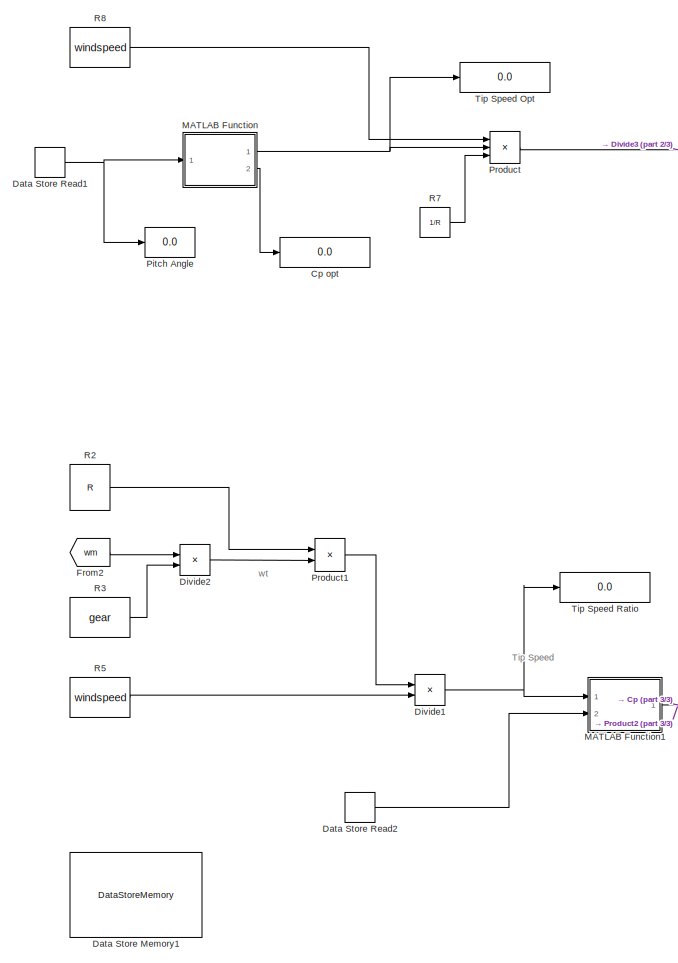
[diagram: Wind Turbine1 - part 1/3, left side, full height]
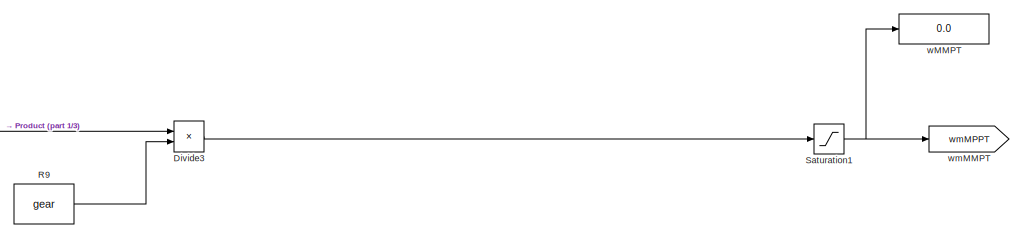
[diagram: Wind Turbine1 - part 2/3, top center region]
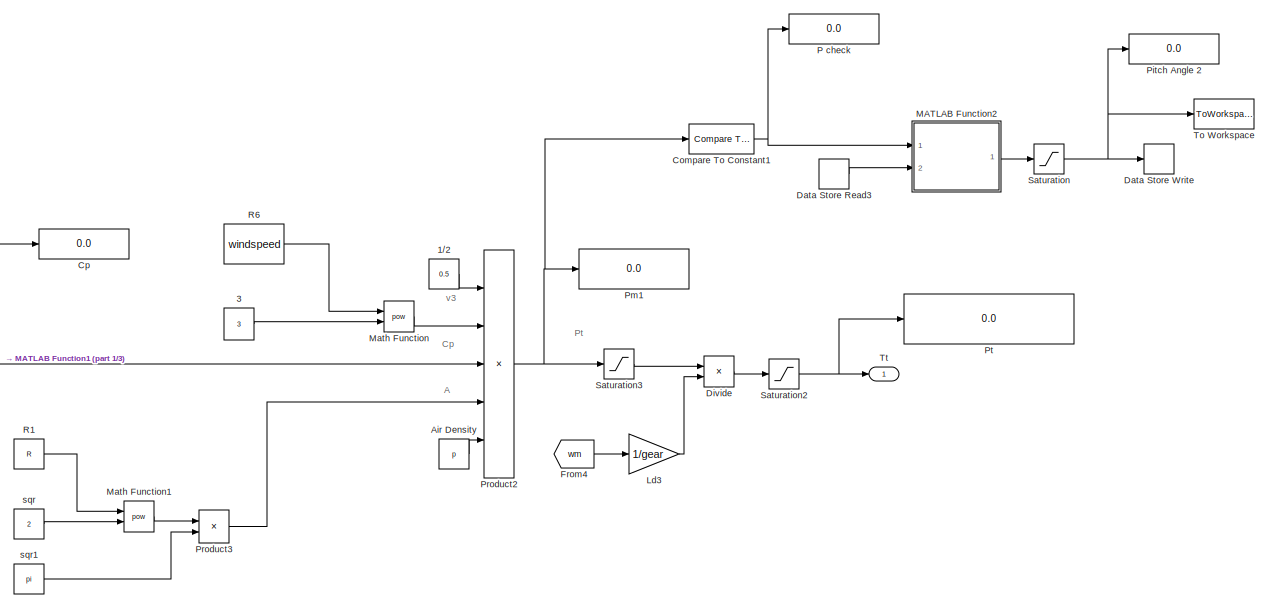
[diagram: Wind Turbine1 - part 3/3, bottom right region]
BLOCK [SubSystem] Wind Turbine1
  Ports = [0, 1]
  RequestExecContextInheritance = off
  Variant = off
BLOCK [Constant] Wind Turbine1/1//2
  Value = 0.5
BLOCK [Constant] Wind Turbine1/3
  Value = 3
BLOCK [Constant] Wind Turbine1/Air Density
  Value = p
BLOCK [Reference] Wind Turbine1/Compare To Constant1  REF=simulink/Logic and Bit
Operations/Compare
To Constant
  Ports = [1, 1]
  SourceBlock = simulink/Logic and Bit\nOperations/Compare\nTo Constant
  SourceType = Compare To Constant
BLOCK [Display] Wind Turbine1/Cp
  Decimation = 1
  Ports = [1]
BLOCK [Display] Wind Turbine1/Cp opt
  Decimation = 1
  Ports = [1]
BLOCK [DataStoreMemory] Wind Turbine1/Data Store Memory1
  DataStoreName = Beta
  OutMax = [90]
  OutMin = [0]
  ReadBeforeWriteMsg = warning
  WriteAfterReadMsg = warning
  WriteAfterWriteMsg = warning
BLOCK [DataStoreRead] Wind Turbine1/Data Store Read1
  DataStoreName = Beta
  Ports = [0, 1]
  SampleTime = Ts
BLOCK [DataStoreRead] Wind Turbine1/Data Store Read2
  DataStoreName = Beta
  Ports = [0, 1]
  SampleTime = Ts
BLOCK [DataStoreRead] Wind Turbine1/Data Store Read3
  DataStoreName = Beta
  Ports = [0, 1]
  SampleTime = Ts
BLOCK [DataStoreWrite] Wind Turbine1/Data Store Write
  DataStoreName = Beta
  Ports = [1]
BLOCK [Product] Wind Turbine1/Divide
  InputSameDT = off
  Inputs = */
  OutDataTypeStr = Inherit: Inherit via internal rule
  Ports = [2, 1]
  RndMeth = Floor
  SaturateOnIntegerOverflow = off
BLOCK [Product] Wind Turbine1/Divide1
  InputSameDT = off
  Inputs = */
  OutDataTypeStr = Inherit: Inherit via internal rule
  Ports = [2, 1]
  RndMeth = Floor
  SaturateOnIntegerOverflow = off
BLOCK [Product] Wind Turbine1/Divide2
  InputSameDT = off
  Inputs = */
  OutDataTypeStr = Inherit: Inherit via internal rule
  Ports = [2, 1]
  RndMeth = Floor
  SaturateOnIntegerOverflow = off
BLOCK [Product] Wind Turbine1/Divide3
  InputSameDT = off
  Inputs = **
  OutDataTypeStr = Inherit: Inherit via internal rule
  Ports = [2, 1]
  RndMeth = Floor
  SaturateOnIntegerOverflow = off
BLOCK [From] Wind Turbine1/From2
  GotoTag = wm
  TagVisibility = global
BLOCK [From] Wind Turbine1/From4
  GotoTag = wm
  TagVisibility = global
BLOCK [Gain] Wind Turbine1/Ld3
  Gain = 1/gear
  OutDataTypeStr = Inherit: Inherit via internal rule
  ParamDataTypeStr = Inherit: Inherit via internal rule
  SaturateOnIntegerOverflow = off
BLOCK [SubSystem] Wind Turbine1/MATLAB Function
  ErrorFcn = Stateflow.Translate.translate
  PermitHierarchicalResolution = ExplicitOnly
  Ports = [1, 2]
  RequestExecContextInheritance = off
  SFBlockType = MATLAB Function
  TreatAsAtomicUnit = on
  Variant = off
BLOCK [Demux] Wind Turbine1/MATLAB Function/ Demux 
  Outputs = 1
  Ports = [1, 1]
BLOCK [S-Function] Wind Turbine1/MATLAB Function/ SFunction 
  EnableBusSupport = on
  FunctionName = sf_sfun
  PortCounts = [1 3]
  Ports = [1, 3]
  SFunctionDeploymentMode = off
  Tag = Stateflow S-Function three_phase_pwm_rectifier_with_PMSGblock 1
BLOCK [Terminator] Wind Turbine1/MATLAB Function/ Terminator 
BLOCK [Outport] Wind Turbine1/MATLAB Function/Cp
  IconDisplay = Port number
  Port = 2
BLOCK [Outport] Wind Turbine1/MATLAB Function/tip
  IconDisplay = Port number
BLOCK [Inport] Wind Turbine1/MATLAB Function/u
  IconDisplay = Port number
BLOCK [SubSystem] Wind Turbine1/MATLAB Function1
  ErrorFcn = Stateflow.Translate.translate
  PermitHierarchicalResolution = ExplicitOnly
  Ports = [2, 1]
  RequestExecContextInheritance = off
  SFBlockType = MATLAB Function
  TreatAsAtomicUnit = on
  Variant = off
BLOCK [Demux] Wind Turbine1/MATLAB Function1/ Demux 
  Outputs = 1
  Ports = [1, 1]
BLOCK [S-Function] Wind Turbine1/MATLAB Function1/ SFunction 
  EnableBusSupport = on
  FunctionName = sf_sfun
  PortCounts = [2 2]
  Ports = [2, 2]
  SFunctionDeploymentMode = off
  Tag = Stateflow S-Function three_phase_pwm_rectifier_with_PMSGblock 2
BLOCK [Terminator] Wind Turbine1/MATLAB Function1/ Terminator 
BLOCK [Inport] Wind Turbine1/MATLAB Function1/B
  IconDisplay = Port number
  Port = 2
BLOCK [Outport] Wind Turbine1/MATLAB Function1/Cp
  IconDisplay = Port number
BLOCK [Inport] Wind Turbine1/MATLAB Function1/u
  IconDisplay = Port number
BLOCK [SubSystem] Wind Turbine1/MATLAB Function2
  ErrorFcn = Stateflow.Translate.translate
  PermitHierarchicalResolution = ExplicitOnly
  Ports = [2, 1]
  RequestExecContextInheritance = off
  SFBlockType = MATLAB Function
  TreatAsAtomicUnit = on
  Variant = off
BLOCK [Demux] Wind Turbine1/MATLAB Function2/ Demux 
  Outputs = 1
  Ports = [1, 1]
BLOCK [S-Function] Wind Turbine1/MATLAB Function2/ SFunction 
  EnableBusSupport = on
  FunctionName = sf_sfun
  PortCounts = [2 2]
  Ports = [2, 2]
  SFunctionDeploymentMode = off
  Tag = Stateflow S-Function three_phase_pwm_rectifier_with_PMSGblock 3
BLOCK [Terminator] Wind Turbine1/MATLAB Function2/ Terminator 
BLOCK [Outport] Wind Turbine1/MATLAB Function2/Betaf
  IconDisplay = Port number
BLOCK [Inport] Wind Turbine1/MATLAB Function2/Betain
  IconDisplay = Port number
  Port = 2
BLOCK [Inport] Wind Turbine1/MATLAB Function2/u
  IconDisplay = Port number
BLOCK [Math] Wind Turbine1/Math Function
  Operator = pow
  Ports = [2, 1]
BLOCK [Math] Wind Turbine1/Math Function1
  Operator = pow
  Ports = [2, 1]
BLOCK [Display] Wind Turbine1/P check
  Decimation = 1
  Ports = [1]
BLOCK [Display] Wind Turbine1/Pitch Angle 
  Decimation = 1
  Ports = [1]
BLOCK [Display] Wind Turbine1/Pitch Angle 2
  Decimation = 1
  Ports = [1]
BLOCK [Display] Wind Turbine1/Pm1
  Decimation = 1
  Ports = [1]
BLOCK [Product] Wind Turbine1/Product
  InputSameDT = off
  Inputs = 3
  OutDataTypeStr = Inherit: Inherit via internal rule
  Ports = [3, 1]
  RndMeth = Floor
  SaturateOnIntegerOverflow = off
BLOCK [Product] Wind Turbine1/Product1
  InputSameDT = off
  OutDataTypeStr = Inherit: Inherit via internal rule
  Ports = [2, 1]
  RndMeth = Floor
  SaturateOnIntegerOverflow = off
BLOCK [Product] Wind Turbine1/Product2
  InputSameDT = off
  Inputs = 5
  OutDataTypeStr = Inherit: Inherit via internal rule
  Ports = [5, 1]
  RndMeth = Floor
  SaturateOnIntegerOverflow = off
BLOCK [Product] Wind Turbine1/Product3
  InputSameDT = off
  OutDataTypeStr = Inherit: Inherit via internal rule
  Ports = [2, 1]
  RndMeth = Floor
  SaturateOnIntegerOverflow = off
BLOCK [Display] Wind Turbine1/Pt
  Decimation = 1
  Ports = [1]
BLOCK [Constant] Wind Turbine1/R1
  Value = R
BLOCK [Constant] Wind Turbine1/R2
  Value = R
BLOCK [Constant] Wind Turbine1/R3
  Value = gear
BLOCK [Constant] Wind Turbine1/R5
  Value = windspeed
BLOCK [Constant] Wind Turbine1/R6
  Value = windspeed
BLOCK [Constant] Wind Turbine1/R7
  Value = 1/R
BLOCK [Constant] Wind Turbine1/R8
  Value = windspeed
BLOCK [Constant] Wind Turbine1/R9
  Value = gear
BLOCK [Saturate] Wind Turbine1/Saturation
  InputPortMap = u0
  LowerLimit = 0
  Ports = [1, 1]
  UpperLimit = 90
BLOCK [Saturate] Wind Turbine1/Saturation1
  InputPortMap = u0
  LowerLimit = 0
  Ports = [1, 1]
  UpperLimit = 181.68
BLOCK [Saturate] Wind Turbine1/Saturation2
  InputPortMap = u0
  LowerLimit = (2.75e6)/(2*pi*(1750/60))*gear
  Ports = [1, 1]
  UpperLimit = (2.75e6)/(2*pi*(550/60))*gear
BLOCK [Saturate] Wind Turbine1/Saturation3
  InputPortMap = u0
  LowerLimit = 0
  Ports = [1, 1]
  UpperLimit = 2.75e6
BLOCK [Display] Wind Turbine1/Tip Speed Opt 
  Decimation = 1
  Ports = [1]
BLOCK [Display] Wind Turbine1/Tip Speed Ratio 
  Decimation = 1
  Ports = [1]
BLOCK [ToWorkspace] Wind Turbine1/To Workspace
  FixptAsFi = on
  MaxDataPoints = inf
  Ports = [1]
  SampleTime = -1
  Save2DSignal = 3-D array (concatenate along third dimension)
  SaveFormat = Timeseries
  VariableName = simout
BLOCK [Outport] Wind Turbine1/Tt
  IconDisplay = Port number
BLOCK [Constant] Wind Turbine1/sqr
  Value = 2
BLOCK [Constant] Wind Turbine1/sqr1
  Value = pi
BLOCK [Display] Wind Turbine1/wMMPT 
  Decimation = 1
  Ports = [1]
BLOCK [Goto] Wind Turbine1/wmMMPT
  GotoTag = wmMPPT
  TagVisibility = global
BLOCK [Reference] powergui  REF=powerlib/powergui
  Ports = []
  Priority = 2
  SourceBlock = powerlib/powergui
  SourceType = PSB option menu block
ANNOTATION Machine Side Controller : Vd*
ANNOTATION Machine Side Controller : iq*
ANNOTATION Wind Turbine1: wt
ANNOTATION Wind Turbine1: A
ANNOTATION Wind Turbine1: Cp
ANNOTATION Wind Turbine1: Pt
ANNOTATION Wind Turbine1: Tip Speed
ANNOTATION Wind Turbine1: v3
LINE Current Measurement:1 -> P:1
LINE From1:1 -> IGBT//Diode:1
LINE From2:1 -> IGBT//Diode2:1
LINE From3:1 -> IGBT//Diode5:1
LINE From4:1 -> IGBT//Diode1:1
LINE From5:1 -> IGBT//Diode3:1
LINE From:1 -> IGBT//Diode4:1
LINE Gearbox/Divide:1 -> Gearbox/Tt':1
LINE Gearbox/Gear Ratio1:1 -> Gearbox/Divide:2
LINE Gearbox/Tt:1 -> Gearbox/Divide:1
NET Gearbox:1 -> Goto1:1, Reflected Torque:1
LINE Machine Side Controller /Add1:1 -> Machine Side Controller /PID Controller3:1
LINE Machine Side Controller /Add2:1 -> Machine Side Controller /PID Controller1:1
LINE Machine Side Controller /Add3:1 -> Machine Side Controller /PID Controller2:1
LINE Machine Side Controller /Add4:1 -> Machine Side Controller /Unit Delay:1
LINE Machine Side Controller /Add5:1 -> Machine Side Controller /Gain1:1
LINE Machine Side Controller /From13:1 -> Machine Side Controller /Gain2:1
LINE Machine Side Controller /From14:1 -> Machine Side Controller /Product1:2
LINE Machine Side Controller /From16:1 -> Machine Side Controller /Gain3:1
LINE Machine Side Controller /From17:1 -> Machine Side Controller /Product3:2
LINE Machine Side Controller /From18:1 -> Machine Side Controller /Gain4:1
LINE Machine Side Controller /From1:1 -> Machine Side Controller /dq0 to abc:2
NET Machine Side Controller /From2:1 -> Machine Side Controller /Add1:2, Machine Side Controller /wm*-wm:2
NET Machine Side Controller /From4:1 -> Machine Side Controller /Add3:2, Machine Side Controller /Mux1:2
NET Machine Side Controller /From6:1 -> Machine Side Controller /Add1:1, Machine Side Controller /wm*-wm:1
NET Machine Side Controller /From:1 -> Machine Side Controller /Add2:2, Machine Side Controller /id ref isd*:2
LINE Machine Side Controller /Gain1:1 -> Machine Side Controller /Unit Delay1:1
LINE Machine Side Controller /Gain2:1 -> Machine Side Controller /Product1:1
LINE Machine Side Controller /Gain3:1 -> Machine Side Controller /Product3:1
LINE Machine Side Controller /Gain4:1 -> Machine Side Controller /Gain5:1
LINE Machine Side Controller /Gain5:1 -> Machine Side Controller /Add5:3
NET Machine Side Controller /Gain6:1 -> Machine Side Controller /Add5:2, Machine Side Controller /iq ref isq1:1
LINE Machine Side Controller /Gain7:1 -> Machine Side Controller /Add4:1
LINE Machine Side Controller /Mux1:1 -> Machine Side Controller /iq ref isq:1
LINE Machine Side Controller /Mux:1 -> Machine Side Controller /dq0 to abc:1
LINE Machine Side Controller /PID Controller1:1 -> Machine Side Controller /Add4:2
LINE Machine Side Controller /PID Controller2:1 -> Machine Side Controller /Add5:1
LINE Machine Side Controller /PID Controller3:1 -> Machine Side Controller /Saturation2:1
LINE Machine Side Controller /PWM Generator /Add5:1 -> Machine Side Controller /PWM Generator /Compare To Zero:1
LINE Machine Side Controller /PWM Generator /Add8:1 -> Machine Side Controller /PWM Generator /Compare To Zero1:1
LINE Machine Side Controller /PWM Generator /Add9:1 -> Machine Side Controller /PWM Generator /Compare To Zero2:1
NET Machine Side Controller /PWM Generator /Compare To Zero1:1 -> Machine Side Controller /PWM Generator /Goto3:1, Machine Side Controller /PWM Generator /Logical Operator1:1
NET Machine Side Controller /PWM Generator /Compare To Zero2:1 -> Machine Side Controller /PWM Generator /Goto5:1, Machine Side Controller /PWM Generator /Logical Operator2:1
NET Machine Side Controller /PWM Generator /Compare To Zero:1 -> Machine Side Controller /PWM Generator /Goto1:1, Machine Side Controller /PWM Generator /Logical Operator:1, Machine Side Controller /PWM Generator /vsq-vqref:3
NET Machine Side Controller /PWM Generator /Demux:1 -> Machine Side Controller /PWM Generator /Add5:1, Machine Side Controller /PWM Generator /vsq-vqref:1
LINE Machine Side Controller /PWM Generator /Demux:2 -> Machine Side Controller /PWM Generator /Add8:1
LINE Machine Side Controller /PWM Generator /Demux:3 -> Machine Side Controller /PWM Generator /Add9:1
LINE Machine Side Controller /PWM Generator /In1:1 -> Machine Side Controller /PWM Generator /Demux:1
LINE Machine Side Controller /PWM Generator /Logical Operator1:1 -> Machine Side Controller /PWM Generator /Goto4:1
LINE Machine Side Controller /PWM Generator /Logical Operator2:1 -> Machine Side Controller /PWM Generator /Goto6:1
LINE Machine Side Controller /PWM Generator /Logical Operator:1 -> Machine Side Controller /PWM Generator /Goto2:1
NET Machine Side Controller /PWM Generator /Sawtooth Generator:1 -> Machine Side Controller /PWM Generator /Add5:2, Machine Side Controller /PWM Generator /Add8:2, Machine Side Controller /PWM Generator /Add9:2, Machine Side Controller /PWM Generator /vsq-vqref:2
LINE Machine Side Controller /Product1:1 -> Machine Side Controller /Gain7:1
LINE Machine Side Controller /Product3:1 -> Machine Side Controller /Gain6:1
NET Machine Side Controller /Saturation2:1 -> Machine Side Controller /Add3:1, Machine Side Controller /Mux1:1
NET Machine Side Controller /Unit Delay1:1 -> Machine Side Controller /Mux:2, Machine Side Controller /Scope2:2
NET Machine Side Controller /Unit Delay:1 -> Machine Side Controller /Mux:1, Machine Side Controller /Scope2:1
NET Machine Side Controller /Vo1:1 -> Machine Side Controller /Add2:1, Machine Side Controller /id ref isd*:1
LINE Machine Side Controller /Vo:1 -> Machine Side Controller /Mux:3
LINE Machine Side Controller /dq0 to abc:1 -> Machine Side Controller /PWM Generator :1
LINE Measurements/Add3:1 -> Measurements/Math Function:1
NET Measurements/Demux1:1 -> Measurements/Goto10:1, Measurements/vd-vq :1
LINE Measurements/Demux1:2 -> Measurements/Gain:1
LINE Measurements/Demux2:1 -> Measurements/isd-isq3:1
LINE Measurements/Demux3:1 -> Measurements/isd-isq3:2
NET Measurements/Demux:1 -> Measurements/Goto:1, Measurements/isd-isq:1
LINE Measurements/Demux:2 -> Measurements/Gain1:1
NET Measurements/From1:1 -> Measurements/Demux3:1, Measurements/Power (3ph, Instantaneous):2, Measurements/Power (Positive-Sequence):2, Measurements/abc to dq0:1, Measurements/isd-isq1:1, Measurements/isd-isq2:1
NET Measurements/From4:1 -> Measurements/Demux2:1, Measurements/PLL (3ph)1:1, Measurements/Power (3ph, Instantaneous):1, Measurements/Power (Positive-Sequence):1, Measurements/abc to dq1:1, Measurements/vd-vq 3:1, Measurements/vpn-filtered1:1
NET Measurements/From:1 -> Measurements/abc to dq0:2, Measurements/isd-isq2:2
NET Measurements/Gain1:1 -> Measurements/Goto3:1, Measurements/isd-isq:2
NET Measurements/Gain:1 -> Measurements/Goto9:1, Measurements/vd-vq :2
NET Measurements/Math Function:1 -> Measurements/Goto2:1, Measurements/vd-vq 2:1
NET Measurements/PLL (3ph)1:1 -> Measurements/Display2:1, Measurements/vd-vq 1:1
NET Measurements/PLL (3ph)1:2 -> Measurements/Add3:1, Measurements/Goto1:1, Measurements/abc to dq1:2, Measurements/dq0 to abc:2, Measurements/vd-vq 1:2, Measurements/vd-vq 2:2
LINE Measurements/Power (3ph, Instantaneous):1 -> Measurements/P:1
LINE Measurements/Power (3ph, Instantaneous):2 -> Measurements/Q:1
LINE Measurements/Power (Positive-Sequence):1 -> Measurements/P1:1
LINE Measurements/Power (Positive-Sequence):2 -> Measurements/Q1:1
LINE Measurements/Vo1:1 -> Measurements/Math Function:2
LINE Measurements/Vo2:1 -> Measurements/Add3:2
LINE Measurements/abc to dq0:1 -> Measurements/Demux:1
NET Measurements/abc to dq1:1 -> Measurements/Demux1:1, Measurements/dq0 to abc:1
LINE Measurements/dq0 to abc:1 -> Measurements/vd-vq 3:2
LINE PMSG /Add1:1 -> PMSG /Gain:1
LINE PMSG /Add2:1 -> PMSG /Unit Delay1:1
LINE PMSG /Add3:1 -> PMSG /Gain4:1
LINE PMSG /Add4:1 -> PMSG /Math Function:1
LINE PMSG /Add:1 -> PMSG /Unit Delay:1
LINE PMSG /Demux1:1 -> PMSG /Controlled Voltage Source:1
LINE PMSG /Demux1:2 -> PMSG /Controlled Voltage Source1:1
LINE PMSG /Demux1:3 -> PMSG /Controlled Voltage Source2:1
LINE PMSG /Demux2:1 -> PMSG /Controlled Voltage Source3:1
LINE PMSG /Demux2:2 -> PMSG /Controlled Voltage Source4:1
LINE PMSG /Demux2:3 -> PMSG /Controlled Voltage Source5:1
LINE PMSG /Derivative1:1 -> PMSG /Gain8:1
LINE PMSG /Derivative:1 -> PMSG /Gain5:1
LINE PMSG /From10:1 -> PMSG /Add1:1
LINE PMSG /From11:1 -> PMSG /Add:2
LINE PMSG /From13:1 -> PMSG /Gain1:1
LINE PMSG /From14:1 -> PMSG /Product1:2
NET PMSG /From15:1 -> PMSG /Derivative1:1, PMSG /Gain7:1
LINE PMSG /From16:1 -> PMSG /Gain2:1
LINE PMSG /From17:1 -> PMSG /Product3:2
LINE PMSG /From18:1 -> PMSG /Gain3:1
NET PMSG /From2:1 -> PMSG /Derivative:1, PMSG /Gain6:1
LINE PMSG /From3:1 -> PMSG /Gain9:1
NET PMSG /From4:1 -> PMSG /Scope4:1, PMSG /dq0 to abc:2
LINE PMSG /From:1 -> PMSG /Add4:2
LINE PMSG /Gain1:1 -> PMSG /Product1:1
LINE PMSG /Gain2:1 -> PMSG /Product3:1
NET PMSG /Gain3:1 -> PMSG /Add3:4, PMSG /Scope6:1
LINE PMSG /Gain4:1 -> PMSG /Unit Delay2:1
LINE PMSG /Gain5:1 -> PMSG /Add2:1
LINE PMSG /Gain6:1 -> PMSG /Add2:2
LINE PMSG /Gain7:1 -> PMSG /Add3:1
LINE PMSG /Gain8:1 -> PMSG /Add3:2
LINE PMSG /Gain9:1 -> PMSG /Add4:1
NET PMSG /Gain:1 -> PMSG /Add:1, PMSG /Scope3:1
LINE PMSG /Math Function:1 -> PMSG /Unit Delay3:1
LINE PMSG /Mux:1 -> PMSG /dq0 to abc:1
LINE PMSG /Product1:1 -> PMSG /Add2:3
LINE PMSG /Product3:1 -> PMSG /Add3:3
NET PMSG /Saturation2:1 -> PMSG /Goto:1, PMSG /Scope:1
LINE PMSG /Te /Add1:1 -> PMSG /Te /Gain:1
LINE PMSG /Te /Costant3:1 -> PMSG /Te /Product:3
LINE PMSG /Te /Costant4:1 -> PMSG /Te /Product1:1
LINE PMSG /Te /From10:1 -> PMSG /Te /Product:1
LINE PMSG /Te /From11:1 -> PMSG /Te /Product:2
LINE PMSG /Te /From12:1 -> PMSG /Te /Product1:2
LINE PMSG /Te /Gain1:1 -> PMSG /Te /Add1:2
LINE PMSG /Te /Gain2:1 -> PMSG /Te /Add1:1
LINE PMSG /Te /Gain:1 -> PMSG /Te /Tem:1
LINE PMSG /Te /Product1:1 -> PMSG /Te /Gain1:1
LINE PMSG /Te /Product:1 -> PMSG /Te /Gain2:1
NET PMSG /Te :1 -> PMSG /Add1:2, PMSG /Torque:1
LINE PMSG /Unit Delay1:1 -> PMSG /Mux:1
LINE PMSG /Unit Delay2:1 -> PMSG /Mux:2
LINE PMSG /Unit Delay3:1 -> PMSG /Goto1:1
LINE PMSG /Unit Delay:1 -> PMSG /Saturation2:1
LINE PMSG /Vo1:1 -> PMSG /Math Function:2
LINE PMSG /Vo:1 -> PMSG /Mux:3
NET PMSG /dq0 to abc:1 -> PMSG /Demux1:1, PMSG /Demux2:1, PMSG /Scope2:1
LINE Voltage Measurement:1 -> Goto9:1
LINE Wind Turbine1/1//2:1 -> Wind Turbine1/Product2:1
LINE Wind Turbine1/3:1 -> Wind Turbine1/Math Function:2
LINE Wind Turbine1/Air Density:1 -> Wind Turbine1/Product2:5
NET Wind Turbine1/Compare To Constant1:1 -> Wind Turbine1/MATLAB Function2:1, Wind Turbine1/P check:1
NET Wind Turbine1/Data Store Read1:1 -> Wind Turbine1/MATLAB Function:1, Wind Turbine1/Pitch Angle :1
LINE Wind Turbine1/Data Store Read2:1 -> Wind Turbine1/MATLAB Function1:2
LINE Wind Turbine1/Data Store Read3:1 -> Wind Turbine1/MATLAB Function2:2
NET Wind Turbine1/Divide1:1 -> Wind Turbine1/MATLAB Function1:1, Wind Turbine1/Tip Speed Ratio :1
LINE Wind Turbine1/Divide2:1 -> Wind Turbine1/Product1:2
LINE Wind Turbine1/Divide3:1 -> Wind Turbine1/Saturation1:1
LINE Wind Turbine1/Divide:1 -> Wind Turbine1/Saturation2:1
LINE Wind Turbine1/From2:1 -> Wind Turbine1/Divide2:1
LINE Wind Turbine1/From4:1 -> Wind Turbine1/Ld3:1
LINE Wind Turbine1/Ld3:1 -> Wind Turbine1/Divide:2
NET Wind Turbine1/MATLAB Function1:1 -> Wind Turbine1/Cp:1, Wind Turbine1/Product2:3
LINE Wind Turbine1/MATLAB Function2:1 -> Wind Turbine1/Saturation:1
NET Wind Turbine1/MATLAB Function:1 -> Wind Turbine1/Product:2, Wind Turbine1/Tip Speed Opt :1
LINE Wind Turbine1/MATLAB Function:2 -> Wind Turbine1/Cp opt:1
LINE Wind Turbine1/Math Function1:1 -> Wind Turbine1/Product3:1
LINE Wind Turbine1/Math Function:1 -> Wind Turbine1/Product2:2
LINE Wind Turbine1/Product1:1 -> Wind Turbine1/Divide1:1
NET Wind Turbine1/Product2:1 -> Wind Turbine1/Compare To Constant1:1, Wind Turbine1/Pm1:1, Wind Turbine1/Saturation3:1
LINE Wind Turbine1/Product3:1 -> Wind Turbine1/Product2:4
LINE Wind Turbine1/Product:1 -> Wind Turbine1/Divide3:1
LINE Wind Turbine1/R1:1 -> Wind Turbine1/Math Function1:1
LINE Wind Turbine1/R2:1 -> Wind Turbine1/Product1:1
LINE Wind Turbine1/R3:1 -> Wind Turbine1/Divide2:2
LINE Wind Turbine1/R5:1 -> Wind Turbine1/Divide1:2
LINE Wind Turbine1/R6:1 -> Wind Turbine1/Math Function:1
LINE Wind Turbine1/R7:1 -> Wind Turbine1/Product:3
LINE Wind Turbine1/R8:1 -> Wind Turbine1/Product:1
LINE Wind Turbine1/R9:1 -> Wind Turbine1/Divide3:2
NET Wind Turbine1/Saturation1:1 -> Wind Turbine1/wMMPT :1, Wind Turbine1/wmMMPT:1
NET Wind Turbine1/Saturation2:1 -> Wind Turbine1/Pt:1, Wind Turbine1/Tt:1
LINE Wind Turbine1/Saturation3:1 -> Wind Turbine1/Divide:1
NET Wind Turbine1/Saturation:1 -> Wind Turbine1/Data Store Write:1, Wind Turbine1/Pitch Angle 2:1, Wind Turbine1/To Workspace:1
LINE Wind Turbine1/sqr1:1 -> Wind Turbine1/Product3:2
LINE Wind Turbine1/sqr:1 -> Wind Turbine1/Math Function1:2
NET Wind Turbine1:1 -> Gearbox:1, Turbine Torque:1
PNET net1: C:LConn1 -- Series RLC Branch4:LConn1 -- Voltage Measurement:LConn1
PNET net2: C:RConn1 -- Series RLC Branch4:RConn1 -- Voltage Measurement:LConn2
PNET net3: Current Measurement:LConn1 -- IGBT//Diode2:LConn1 -- IGBT//Diode4:LConn1 -- IGBT//Diode:LConn1
PLINE Current Measurement:RConn1 -- DC Voltage Source:RConn1
PNET net4: DC Voltage Source:LConn1 -- IGBT//Diode1:RConn1 -- IGBT//Diode3:RConn1 -- IGBT//Diode5:RConn1
PNET net5: IGBT//Diode1:LConn1 -- IGBT//Diode:RConn1 -- Three-Phase V-I Measurement1:RConn2
PNET net6: IGBT//Diode2:RConn1 -- IGBT//Diode3:LConn1 -- Three-Phase V-I Measurement1:RConn3
PNET net7: IGBT//Diode4:RConn1 -- IGBT//Diode5:LConn1 -- Three-Phase V-I Measurement1:RConn1
PLINE PMSG /C3:LConn1 -- PMSG /Conn1:RConn1
PLINE PMSG /C3:RConn1 -- PMSG /Controlled Voltage Source:RConn1
PLINE PMSG /C4:LConn1 -- PMSG /Conn2:RConn1
PLINE PMSG /C4:RConn1 -- PMSG /Controlled Voltage Source1:RConn1
PLINE PMSG /C5:LConn1 -- PMSG /Conn3:RConn1
PLINE PMSG /C5:RConn1 -- PMSG /Controlled Voltage Source2:RConn1
PLINE PMSG /Conn4:RConn1 -- PMSG /Controlled Voltage Source3:RConn1
PLINE PMSG /Conn5:RConn1 -- PMSG /Controlled Voltage Source4:RConn1
PLINE PMSG /Conn6:RConn1 -- PMSG /Controlled Voltage Source5:RConn1
PNET net8: PMSG /Controlled Voltage Source1:LConn1 -- PMSG /Controlled Voltage Source2:LConn1 -- PMSG /Controlled Voltage Source:LConn1
PNET net9: PMSG /Controlled Voltage Source3:LConn1 -- PMSG /Controlled Voltage Source4:LConn1 -- PMSG /Controlled Voltage Source5:LConn1
PLINE PMSG :LConn1 -- Three-Phase V-I Measurement2:RConn1
PLINE PMSG :LConn2 -- Three-Phase V-I Measurement2:RConn2
PLINE PMSG :LConn3 -- Three-Phase V-I Measurement2:RConn3
PLINE PMSG :RConn1 -- Three-Phase V-I Measurement1:LConn1
PLINE PMSG :RConn2 -- Three-Phase V-I Measurement1:LConn2
PLINE PMSG :RConn3 -- Three-Phase V-I Measurement1:LConn3
note: NET lines group one-source signal fan-out (src -> all destinations, sorted); 1:1 wires keep LINE; PNET lines group multi-terminal physical nets as a canonical sorted terminal list (undirected conserving connections); 2-terminal nets keep the pairwise PLINE form
CHART Wind Turbine1/MATLAB Function states=1 transitions=1
  STATE_LABEL 'eML_blk_kernel()'
  STATE_LABEL 'SCRIPT:\nfunction [tip,Cp]= fcn(u)\n\nc1 = 0.5176;\nc2 = 116;\nc3 = 0.4;\nc4 = 5;\nc5 = 21;\nc6 = 0.0068;\nB=0;\nfor i = 0.1:0.1:15\n    \nli = 1/((1/(i+0.08*u))-(0.035/(u^3+1)));\nA = c1*((c2/li-c3*u-c4)*exp(-c5/li))+c6*i ;%#codegen\n\n    if A < B\n    lopt = i;\n    break\n    else \n    B = A;\n    end\nend\ntip = i;\nCp = c1*((c2/li-c3*u-c4)*exp(-c5/li))+c6*i;\nend\n'
CHART Wind Turbine1/MATLAB Function1 states=1 transitions=1
  STATE_LABEL 'eML_blk_kernel()'
  STATE_LABEL 'SCRIPT:\nfunction Cp = fcn(u,B)\n\nc1 = 0.5176;\nc2 = 116;\nc3 = 0.4; \nc4 = 5;\nc5 = 21;\nc6 = 0.0068;\n\ni =u;\n\nli = 1/((1/(i+0.08*B))-(0.035/(B^3+1)));\n\nCp = c1*((c2/li-c3*B-c4)*exp(-c5/li))+c6*i;\n\nend\n'
CHART Wind Turbine1/MATLAB Function2 states=1 transitions=1
  STATE_LABEL 'eML_blk_kernel()'
  STATE_LABEL 'SCRIPT:\nfunction Betaf  = fcn(u,Betain)\n\n    if u ==1\n    Betaf = Betain+0.01;\n    else  \n\n    Betaf = Betain-0.01;\n    end\n \n    \n    \nend'
